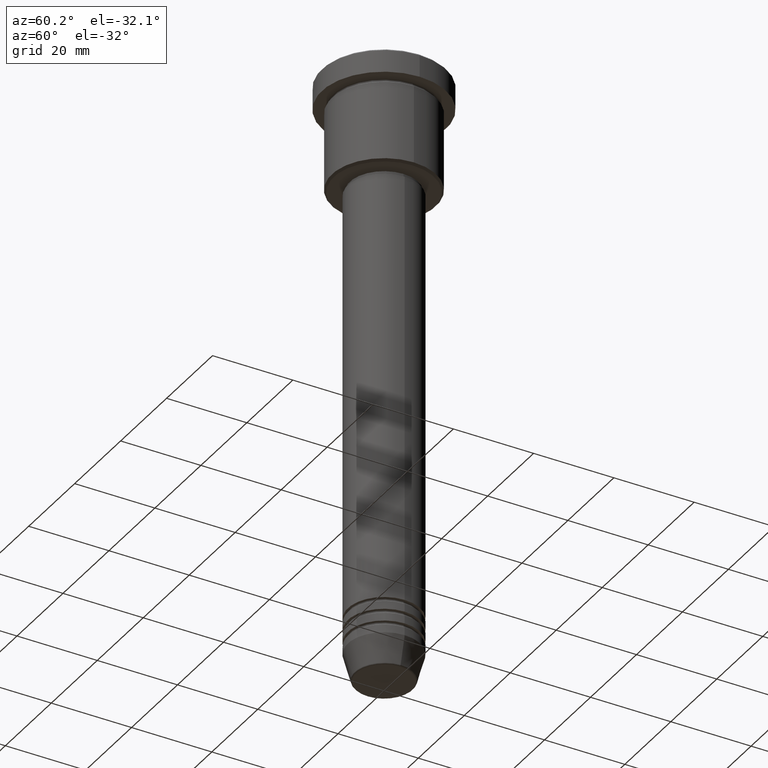
[diagram: clean part render]
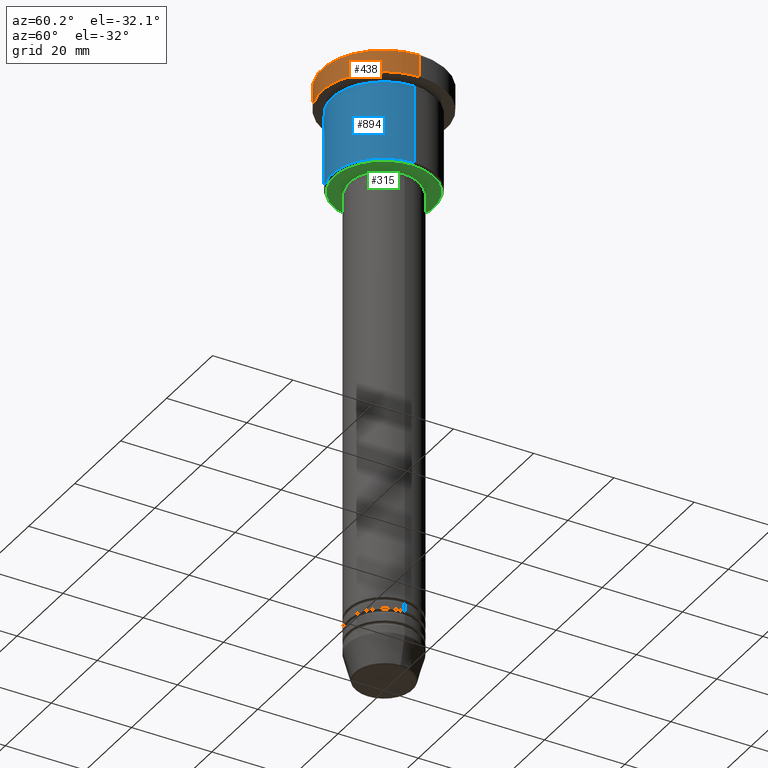
[diagram: same view with three faces highlighted in distinct colors, each labeled with its STEP entity id]
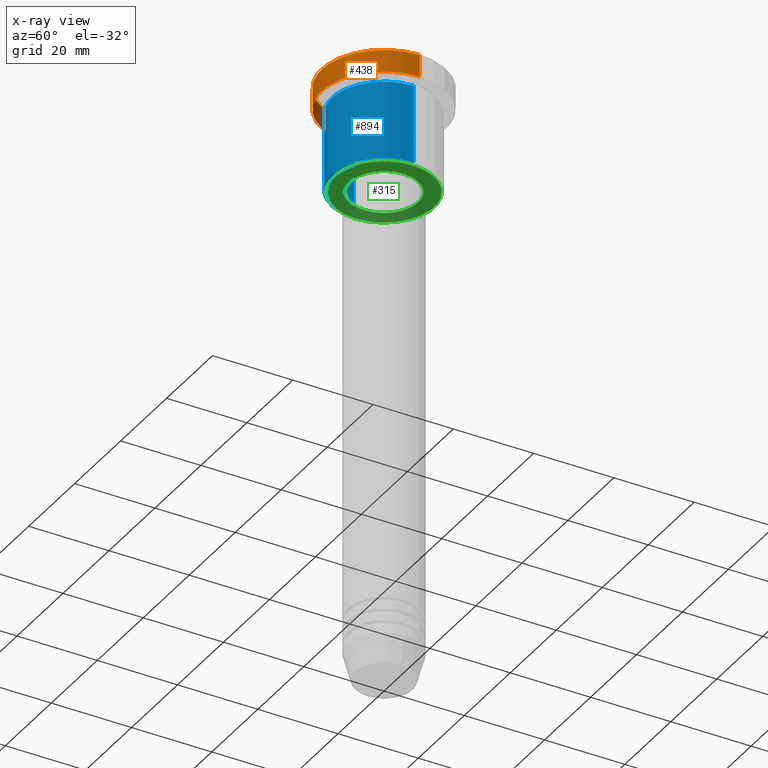
[diagram: x-ray of the same camera — body ghosted, the three highlighted faces saturated]
A machine part, auxiliary view with three faces highlighted in distinct colors.
The next image is the same camera in x-ray (body ghosted, the three faces saturated) — at least one of them is partly hidden behind the body in this view.
Their STEP definitions:

[orange] entity #438 — the highlighted cylindrical surface (partial cylindrical patch) has radius 15.5 mm, axis along (-0, -0, 1).
#25 = ORIENTED_EDGE ( 'NONE', *, *, #262, .F. ) ;
#37 = EDGE_CURVE ( 'NONE', #1130, #760, #888, .T. ) ;
#43 = EDGE_LOOP ( 'NONE', ( #25, #261, #546, #272 ) ) ;
#53 = CARTESIAN_POINT ( 'NONE',  ( 0.000000000000000000, 0.000000000000000000, 0.000000000000000000 ) ) ;
#85 = CARTESIAN_POINT ( 'NONE',  ( 0.000000000000000000, 0.000000000000000000, -5.999999999999995559 ) ) ;
#122 = DIRECTION ( 'NONE',  ( -0.000000000000000000, -0.000000000000000000, 1.000000000000000000 ) ) ;
#136 = VECTOR ( 'NONE', #964, 1000.000000000000000 ) ;
#170 = VERTEX_POINT ( 'NONE', #442 ) ;
#212 = AXIS2_PLACEMENT_3D ( 'NONE', #417, #1059, #228 ) ;
#220 = DIRECTION ( 'NONE',  ( 1.000000000000000000, 0.000000000000000000, 0.000000000000000000 ) ) ;
#228 = DIRECTION ( 'NONE',  ( 1.000000000000000000, 0.000000000000000000, 0.000000000000000000 ) ) ;
#258 = DIRECTION ( 'NONE',  ( 1.000000000000000000, 0.000000000000000000, 0.000000000000000000 ) ) ;
#261 = ORIENTED_EDGE ( 'NONE', *, *, #986, .T. ) ;
#262 = EDGE_CURVE ( 'NONE', #621, #170, #458, .T. ) ;
#272 = ORIENTED_EDGE ( 'NONE', *, *, #869, .T. ) ;
#383 = CARTESIAN_POINT ( 'NONE',  ( 15.50000000000000000, 0.000000000000000000, -5.999999999999995559 ) ) ;
#406 = FACE_OUTER_BOUND ( 'NONE', #43, .T. ) ;
#417 = CARTESIAN_POINT ( 'NONE',  ( 0.000000000000000000, 0.000000000000000000, -0.4999999999999987232 ) ) ;
#438 = ADVANCED_FACE ( 'NONE', ( #406 ), #511, .T. ) ;
#442 = CARTESIAN_POINT ( 'NONE',  ( -15.50000000000000000, 1.898202538678397557E-15, -0.4999999999999987232 ) ) ;
#458 = LINE ( 'NONE', #563, #827 ) ;
#511 = CYLINDRICAL_SURFACE ( 'NONE', #1092, 15.50000000000000000 ) ;
#545 = DIRECTION ( 'NONE',  ( -0.000000000000000000, -0.000000000000000000, 1.000000000000000000 ) ) ;
#546 = ORIENTED_EDGE ( 'NONE', *, *, #37, .T. ) ;
#551 = CARTESIAN_POINT ( 'NONE',  ( -15.50000000000000000, 1.898202538678397557E-15, -5.999999999999995559 ) ) ;
#563 = CARTESIAN_POINT ( 'NONE',  ( -15.50000000000000000, 1.898202538678397557E-15, 0.000000000000000000 ) ) ;
#592 = CARTESIAN_POINT ( 'NONE',  ( 15.50000000000000000, 0.000000000000000000, 0.000000000000000000 ) ) ;
#621 = VERTEX_POINT ( 'NONE', #551 ) ;
#679 = CARTESIAN_POINT ( 'NONE',  ( 15.50000000000000000, 0.000000000000000000, -0.4999999999999987232 ) ) ;
#760 = VERTEX_POINT ( 'NONE', #679 ) ;
#796 = DIRECTION ( 'NONE',  ( -0.000000000000000000, -0.000000000000000000, 1.000000000000000000 ) ) ;
#827 = VECTOR ( 'NONE', #122, 1000.000000000000000 ) ;
#868 = AXIS2_PLACEMENT_3D ( 'NONE', #85, #545, #258 ) ;
#869 = EDGE_CURVE ( 'NONE', #760, #170, #946, .T. ) ;
#888 = LINE ( 'NONE', #592, #136 ) ;
#946 = CIRCLE ( 'NONE', #212, 15.50000000000000000 ) ;
#964 = DIRECTION ( 'NONE',  ( -0.000000000000000000, -0.000000000000000000, 1.000000000000000000 ) ) ;
#986 = EDGE_CURVE ( 'NONE', #621, #1130, #1002, .T. ) ;
#1002 = CIRCLE ( 'NONE', #868, 15.50000000000000000 ) ;
#1059 = DIRECTION ( 'NONE',  ( 0.000000000000000000, 0.000000000000000000, -1.000000000000000000 ) ) ;
#1092 = AXIS2_PLACEMENT_3D ( 'NONE', #53, #796, #220 ) ;
#1130 = VERTEX_POINT ( 'NONE', #383 ) ;

[blue] entity #894 — the highlighted cylindrical surface (partial cylindrical patch) has radius 13 mm, axis along (-0, -0, 1).
#10 = AXIS2_PLACEMENT_3D ( 'NONE', #1137, #124, #1029 ) ;
#19 = LINE ( 'NONE', #375, #1133 ) ;
#50 = LINE ( 'NONE', #65, #756 ) ;
#55 = DIRECTION ( 'NONE',  ( 1.000000000000000000, 0.000000000000000000, 0.000000000000000000 ) ) ;
#65 = CARTESIAN_POINT ( 'NONE',  ( 13.00000000000000000, 0.000000000000000000, 0.000000000000000000 ) ) ;
#84 = ORIENTED_EDGE ( 'NONE', *, *, #121, .T. ) ;
#110 = CARTESIAN_POINT ( 'NONE',  ( 13.00000000000000000, 0.000000000000000000, -26.49999999999994671 ) ) ;
#121 = EDGE_CURVE ( 'NONE', #411, #307, #864, .T. ) ;
#123 = ORIENTED_EDGE ( 'NONE', *, *, #379, .F. ) ;
#124 = DIRECTION ( 'NONE',  ( -0.000000000000000000, -0.000000000000000000, 1.000000000000000000 ) ) ;
#143 = CARTESIAN_POINT ( 'NONE',  ( -13.00000000000000000, 1.592040838891559095E-15, -26.49999999999994671 ) ) ;
#252 = DIRECTION ( 'NONE',  ( -0.000000000000000000, -0.000000000000000000, 1.000000000000000000 ) ) ;
#304 = ORIENTED_EDGE ( 'NONE', *, *, #784, .F. ) ;
#307 = VERTEX_POINT ( 'NONE', #110 ) ;
#318 = DIRECTION ( 'NONE',  ( -0.000000000000000000, -0.000000000000000000, 1.000000000000000000 ) ) ;
#323 = AXIS2_PLACEMENT_3D ( 'NONE', #705, #451, #1084 ) ;
#331 = ORIENTED_EDGE ( 'NONE', *, *, #852, .T. ) ;
#332 = FACE_OUTER_BOUND ( 'NONE', #1006, .T. ) ;
#370 = VERTEX_POINT ( 'NONE', #463 ) ;
#375 = CARTESIAN_POINT ( 'NONE',  ( -13.00000000000000000, 1.592040838891559095E-15, 0.000000000000000000 ) ) ;
#379 = EDGE_CURVE ( 'NONE', #411, #662, #19, .T. ) ;
#411 = VERTEX_POINT ( 'NONE', #143 ) ;
#433 = CYLINDRICAL_SURFACE ( 'NONE', #882, 13.00000000000000000 ) ;
#449 = CARTESIAN_POINT ( 'NONE',  ( -13.00000000000000000, 1.592040838891559095E-15, -6.999999999999995559 ) ) ;
#451 = DIRECTION ( 'NONE',  ( -0.000000000000000000, -0.000000000000000000, 1.000000000000000000 ) ) ;
#463 = CARTESIAN_POINT ( 'NONE',  ( 13.00000000000000000, 0.000000000000000000, -6.999999999999995559 ) ) ;
#662 = VERTEX_POINT ( 'NONE', #449 ) ;
#705 = CARTESIAN_POINT ( 'NONE',  ( 0.000000000000000000, 0.000000000000000000, -26.49999999999994671 ) ) ;
#734 = CIRCLE ( 'NONE', #10, 13.00000000000000000 ) ;
#756 = VECTOR ( 'NONE', #252, 1000.000000000000000 ) ;
#784 = EDGE_CURVE ( 'NONE', #662, #370, #734, .T. ) ;
#852 = EDGE_CURVE ( 'NONE', #307, #370, #50, .T. ) ;
#864 = CIRCLE ( 'NONE', #323, 13.00000000000000000 ) ;
#872 = CARTESIAN_POINT ( 'NONE',  ( 0.000000000000000000, 0.000000000000000000, 0.000000000000000000 ) ) ;
#882 = AXIS2_PLACEMENT_3D ( 'NONE', #872, #318, #55 ) ;
#894 = ADVANCED_FACE ( 'NONE', ( #332 ), #433, .T. ) ;
#1006 = EDGE_LOOP ( 'NONE', ( #123, #84, #331, #304 ) ) ;
#1025 = DIRECTION ( 'NONE',  ( -0.000000000000000000, -0.000000000000000000, 1.000000000000000000 ) ) ;
#1029 = DIRECTION ( 'NONE',  ( 1.000000000000000000, 0.000000000000000000, 0.000000000000000000 ) ) ;
#1084 = DIRECTION ( 'NONE',  ( -1.000000000000000000, 0.000000000000000000, 0.000000000000000000 ) ) ;
#1133 = VECTOR ( 'NONE', #1025, 1000.000000000000000 ) ;
#1137 = CARTESIAN_POINT ( 'NONE',  ( 0.000000000000000000, 0.000000000000000000, -6.999999999999995559 ) ) ;

[green] entity #315 — the highlighted planar face has unit normal (0, 0, -1).
#2 = DIRECTION ( 'NONE',  ( -1.000000000000000000, 0.000000000000000000, 0.000000000000000000 ) ) ;
#46 = ORIENTED_EDGE ( 'NONE', *, *, #338, .T. ) ;
#59 = CARTESIAN_POINT ( 'NONE',  ( 8.499999999999998224, 0.000000000000000000, -26.99999999999998579 ) ) ;
#78 = CIRCLE ( 'NONE', #777, 12.49999999999996980 ) ;
#86 = CARTESIAN_POINT ( 'NONE',  ( 0.000000000000000000, 0.000000000000000000, -26.99999999999998224 ) ) ;
#178 = VERTEX_POINT ( 'NONE', #535 ) ;
#193 = CIRCLE ( 'NONE', #1043, 12.49999999999996980 ) ;
#202 = EDGE_LOOP ( 'NONE', ( #46, #850 ) ) ;
#208 = ORIENTED_EDGE ( 'NONE', *, *, #814, .T. ) ;
#223 = CARTESIAN_POINT ( 'NONE',  ( 0.000000000000000000, 0.000000000000000000, -26.99999999999998579 ) ) ;
#280 = PLANE ( 'NONE',  #599 ) ;
#315 = ADVANCED_FACE ( 'NONE', ( #381, #572 ), #280, .T. ) ;
#338 = EDGE_CURVE ( 'NONE', #957, #1163, #78, .T. ) ;
#381 = FACE_OUTER_BOUND ( 'NONE', #202, .T. ) ;
#396 = DIRECTION ( 'NONE',  ( -0.000000000000000000, -0.000000000000000000, 1.000000000000000000 ) ) ;
#404 = DIRECTION ( 'NONE',  ( 1.000000000000000000, 0.000000000000000000, 0.000000000000000000 ) ) ;
#470 = DIRECTION ( 'NONE',  ( 0.000000000000000000, 0.000000000000000000, -1.000000000000000000 ) ) ;
#488 = DIRECTION ( 'NONE',  ( -1.000000000000000000, 0.000000000000000000, -0.000000000000000000 ) ) ;
#489 = CARTESIAN_POINT ( 'NONE',  ( 0.000000000000000000, 0.000000000000000000, -26.99999999999998579 ) ) ;
#535 = CARTESIAN_POINT ( 'NONE',  ( -8.499999999999998224, 1.040949779275249943E-15, -26.99999999999998579 ) ) ;
#549 = CARTESIAN_POINT ( 'NONE',  ( 0.000000000000000000, 13.00000000000000000, -26.99999999999998224 ) ) ;
#570 = ORIENTED_EDGE ( 'NONE', *, *, #727, .T. ) ;
#572 = FACE_BOUND ( 'NONE', #670, .T. ) ;
#588 = DIRECTION ( 'NONE',  ( -0.000000000000000000, -0.000000000000000000, 1.000000000000000000 ) ) ;
#599 = AXIS2_PLACEMENT_3D ( 'NONE', #549, #470, #488 ) ;
#600 = AXIS2_PLACEMENT_3D ( 'NONE', #223, #588, #1120 ) ;
#670 = EDGE_LOOP ( 'NONE', ( #570, #208 ) ) ;
#689 = EDGE_CURVE ( 'NONE', #1163, #957, #193, .T. ) ;
#727 = EDGE_CURVE ( 'NONE', #934, #178, #1001, .T. ) ;
#777 = AXIS2_PLACEMENT_3D ( 'NONE', #917, #842, #1016 ) ;
#780 = AXIS2_PLACEMENT_3D ( 'NONE', #489, #396, #404 ) ;
#786 = CARTESIAN_POINT ( 'NONE',  ( 12.49999999999996980, 0.000000000000000000, -26.99999999999998224 ) ) ;
#795 = CIRCLE ( 'NONE', #600, 8.499999999999998224 ) ;
#814 = EDGE_CURVE ( 'NONE', #178, #934, #795, .T. ) ;
#822 = DIRECTION ( 'NONE',  ( 0.000000000000000000, 0.000000000000000000, -1.000000000000000000 ) ) ;
#842 = DIRECTION ( 'NONE',  ( 0.000000000000000000, 0.000000000000000000, -1.000000000000000000 ) ) ;
#850 = ORIENTED_EDGE ( 'NONE', *, *, #689, .T. ) ;
#917 = CARTESIAN_POINT ( 'NONE',  ( 0.000000000000000000, 0.000000000000000000, -26.99999999999998224 ) ) ;
#934 = VERTEX_POINT ( 'NONE', #59 ) ;
#957 = VERTEX_POINT ( 'NONE', #786 ) ;
#1001 = CIRCLE ( 'NONE', #780, 8.499999999999998224 ) ;
#1016 = DIRECTION ( 'NONE',  ( -1.000000000000000000, 0.000000000000000000, 0.000000000000000000 ) ) ;
#1043 = AXIS2_PLACEMENT_3D ( 'NONE', #86, #822, #2 ) ;
#1120 = DIRECTION ( 'NONE',  ( 1.000000000000000000, 0.000000000000000000, 0.000000000000000000 ) ) ;
#1122 = CARTESIAN_POINT ( 'NONE',  ( -12.49999999999996980, 1.561424668912873336E-15, -26.99999999999998224 ) ) ;
#1163 = VERTEX_POINT ( 'NONE', #1122 ) ;